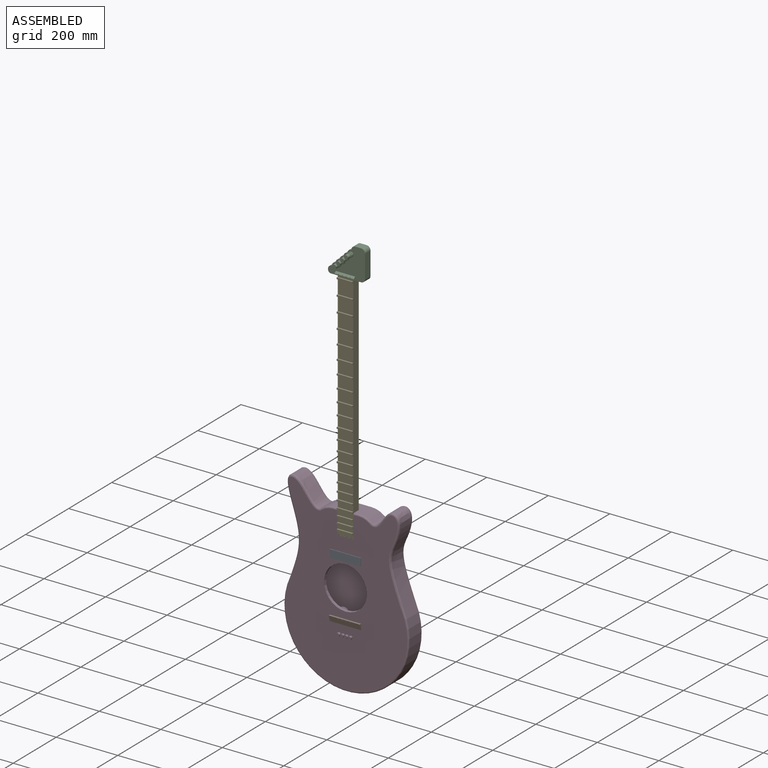
[diagram: assembled view]
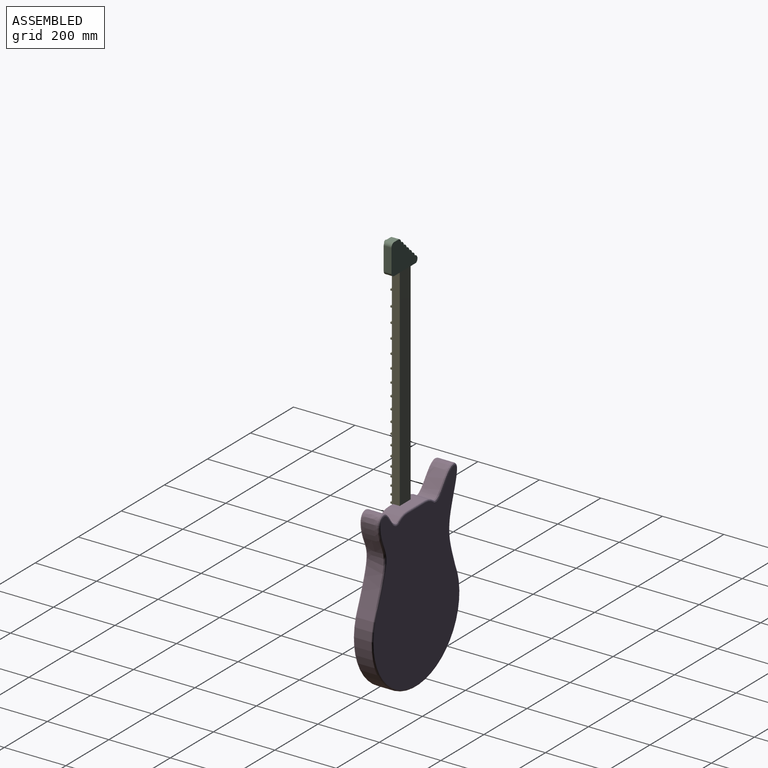
[diagram: assembled view, second angle]
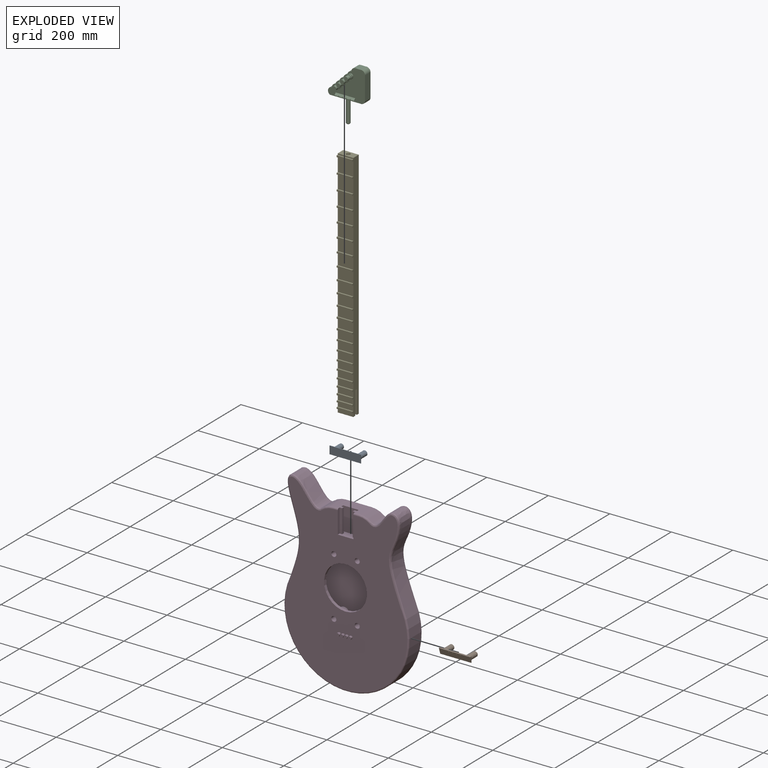
[diagram: exploded view]
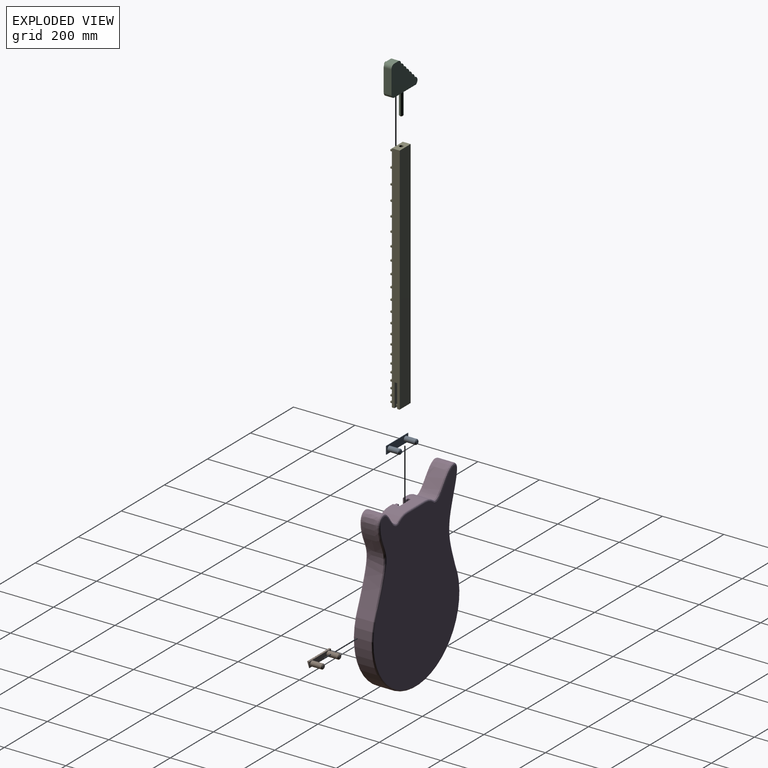
[diagram: exploded view, second angle]
ASSEMBLY  parts=5 mates=4
PART A: 12 faces, bbox 101.6x39.7x25.4 mm
  f0: plane 25.4x1.59mm, normal (-1,0,0), area 40.3mm2, adj f2,f3,f4,f9
  f1: plane 25.4x1.59mm, normal (1,0,0), area 40.3mm2, adj f2,f3,f4,f9
  f2: plane 101.6x1.59mm, normal (0,0,-1), area 161.3mm2, adj f0,f1,f4,f9
  f3: plane 101.6x1.59mm, normal (0,0,1), area 161.3mm2, adj f0,f1,f4,f9
  f4: plane 101.6x25.4mm, normal (0,1,0), area 2152.5mm2, adj f0,f1,f2,f3,f5,f7
  f5: cylinder r=8.26mm len=35.56mm, axis (0,-1,0), area 1844.4mm2, adj f4,f11
  f6: plane 11.43x11.43mm, normal (0,1,0), area 102.6mm2, adj f11
  f7: cylinder r=8.26mm len=35.56mm, axis (0,-1,0), area 1844.4mm2, adj f4,f10
  f8: plane 11.43x11.43mm, normal (0,1,0), area 102.6mm2, adj f10
  f9: plane 101.6x25.4mm, normal (0,-1,0), area 2580.6mm2, adj f0,f1,f2,f3
  f10: cone r=5.71mm half-angle=45deg, axis (0,-1,0), area 157.7mm2, adj f7,f8
  f11: cone r=5.71mm half-angle=45deg, axis (0,-1,0), area 157.7mm2, adj f5,f6
PART B: 15 faces, bbox 101.6x44.5x19.1 mm
  f0: plane 19.05x6.35mm, normal (-1,0,0), area 60.5mm2, adj f6,f13,f14
  f1: cylinder r=1.59mm len=4.78mm, axis (0,0,1), area 15.1mm2, adj f13,f14
  f2: cylinder r=1.59mm len=4.78mm, axis (0,0,1), area 15.1mm2, adj f13,f14
  f3: cylinder r=1.59mm len=4.78mm, axis (0,0,1), area 15.1mm2, adj f13,f14
  f4: cylinder r=1.59mm len=4.78mm, axis (0,0,1), area 15.1mm2, adj f13,f14
  f5: plane 19.05x6.35mm, normal (1,0,0), area 60.5mm2, adj f6,f13,f14
  f6: plane 101.6x19.05mm, normal (0,1,0), area 1507.3mm2, adj f0,f5,f7,f9,f13,f14
  f7: cylinder r=8.26mm len=35.56mm, axis (0,-1,0), area 1844.4mm2, adj f6,f12
  f8: plane 11.43x11.43mm, normal (0,1,0), area 102.6mm2, adj f12
  f9: cylinder r=8.26mm len=35.56mm, axis (0,-1,0), area 1844.4mm2, adj f6,f11
  f10: plane 11.43x11.43mm, normal (0,1,0), area 102.6mm2, adj f11
  f11: cone r=5.71mm half-angle=45deg, axis (0,-1,0), area 157.7mm2, adj f9,f10
  f12: cone r=5.71mm half-angle=45deg, axis (0,-1,0), area 157.7mm2, adj f7,f8
  f13: plane 101.6x6.35mm, normal (0,0,1), area 629.3mm2, adj f0,f1,f2,f3,f4,f5,f6,f14
  f14: plane 101.6x19.05mm, normal (0,-0.95,-0.32), area 1990.1mm2, adj f0,f1,f2,f3,f4,f5,f6,f13
PART C: 65 faces, bbox 120.7x50.8x176.1 mm
  f0: cylinder r=7.94mm len=15.88mm, axis (0,1,0), area 158.3mm2, adj f1,f9
  f1: plane 15.88x15.88mm, normal (0,-1,0), area 71.3mm2, adj f0,f7
  f2: plane 12.7x12.7mm, normal (0,-1,0), area 126.7mm2, adj f3
  f3: cylinder r=6.35mm len=12.7mm, axis (0,-1,0), area 506.7mm2, adj f2,f4
  f4: plane 15.88x15.88mm, normal (0,-1,0), area 71.3mm2, adj f3,f5
  f5: cylinder r=7.94mm len=15.88mm, axis (0,-1,0), area 158.3mm2, adj f4,f6
  f6: plane 15.88x15.88mm, normal (0,1,0), area 71.3mm2, adj f5,f7
  f7: cylinder r=6.35mm len=12.7mm, axis (0,1,0), area 126.7mm2, adj f1,f6
  f8: cylinder r=6.35mm len=12.7mm, axis (0,1,0), area 126.7mm2, adj f9,f33
  f9: plane 15.88x15.88mm, normal (0,1,0), area 71.3mm2, adj f0,f8
  f10: plane 7.62x7.62mm, normal (0,0,-1), area 45.6mm2, adj f64
  f11: cylinder r=6.35mm len=73.66mm, axis (0,0,1), area 2938.9mm2, adj f27,f64
  f12: plane 120.65x99.9mm, normal (0,1,0), area 8333.8mm2, adj f17,f18,f19,f20,f21,f22,f23,f24
  f13: cylinder r=1.59mm len=3.18mm, axis (0,0,-1), area 4.2mm2, adj f30,f32
  f14: cylinder r=1.59mm len=3.18mm, axis (0,0,-1), area 4.2mm2, adj f30,f32
  f15: cylinder r=1.59mm len=3.18mm, axis (0,0,-1), area 4.2mm2, adj f30,f32
  f16: cylinder r=1.59mm len=3.18mm, axis (0,0,-1), area 4.2mm2, adj f30,f32
  f17: cylinder r=12.7mm len=25.4mm, axis (0,1,0), area 506.7mm2, adj f12,f18,f28,f33
  f18: cylinder r=12.7mm len=25.4mm, axis (0,1,0), area 506.7mm2, adj f12,f17,f19,f33
  f19: cylinder r=12.7mm len=25.4mm, axis (0,1,0), area 506.7mm2, adj f12,f18,f20,f33
  f20: cylinder r=12.7mm len=25.4mm, axis (0,1,0), area 506.7mm2, adj f12,f19,f21,f33
  f21: cylinder r=12.7mm len=25.4mm, axis (0,1,0), area 506.7mm2, adj f12,f20,f22,f33
  f22: cylinder r=12.7mm len=25.4mm, axis (0,1,0), area 506.7mm2, adj f12,f21,f23,f33
  f23: plane 25.4x19.05mm, normal (0,0,1), area 483.9mm2, adj f12,f22,f24,f33
  f24: cylinder r=12.7mm len=25.4mm, axis (0,1,0), area 506.7mm2, adj f12,f23,f25,f33
  f25: plane 74.5x25.4mm, normal (1,0,0), area 1892.3mm2, adj f12,f24,f26,f33
  f26: cylinder r=12.7mm len=25.4mm, axis (0,1,0), area 506.7mm2, adj f12,f25,f27,f33
  f27: plane 101.6x25.4mm, normal (0,0,-1), area 2454mm2, adj f11,f12,f26,f28,f33
  f28: cylinder r=12.7mm len=25.4mm, axis (0,1,0), area 844.5mm2, adj f12,f17,f27,f33
  f29: plane 6.35x5.33mm, normal (1,0,0), area 16.9mm2, adj f30,f32,f33
  f30: plane 63.5x6.35mm, normal (0,-0.64,0.77), area 505.7mm2, adj f13,f14,f15,f16,f29,f31,f32,f33
  f31: plane 6.35x5.33mm, normal (-1,0,0), area 16.9mm2, adj f30,f32,f33
  f32: plane 63.5x6.35mm, normal (0,0,-1), area 387.4mm2, adj f13,f14,f15,f16,f29,f30,f31,f33
  f33: plane 120.65x99.9mm, normal (0,-1,0), area 7488.8mm2, adj f8,f17,f18,f19,f20,f21,f22,f23
  f34: cylinder r=6.35mm len=12.7mm, axis (0,1,0), area 126.7mm2, adj f33,f35
  f35: plane 15.88x15.88mm, normal (0,1,0), area 71.3mm2, adj f34,f43
  f36: plane 12.7x12.7mm, normal (0,-1,0), area 126.7mm2, adj f37
  f37: cylinder r=6.35mm len=12.7mm, axis (0,-1,0), area 506.7mm2, adj f36,f38
  f38: plane 15.88x15.88mm, normal (0,-1,0), area 71.3mm2, adj f37,f39
  f39: cylinder r=7.94mm len=15.88mm, axis (0,-1,0), area 158.3mm2, adj f38,f40
  f40: plane 15.88x15.88mm, normal (0,1,0), area 71.3mm2, adj f39,f41
  f41: cylinder r=6.35mm len=12.7mm, axis (0,1,0), area 126.7mm2, adj f40,f42
  f42: plane 15.88x15.88mm, normal (0,-1,0), area 71.3mm2, adj f41,f43
  f43: cylinder r=7.94mm len=15.88mm, axis (0,1,0), area 158.3mm2, adj f35,f42
  f44: cylinder r=6.35mm len=12.7mm, axis (0,1,0), area 126.7mm2, adj f33,f45
  f45: plane 15.88x15.88mm, normal (0,1,0), area 71.3mm2, adj f44,f53
  f46: plane 12.7x12.7mm, normal (0,-1,0), area 126.7mm2, adj f47
  f47: cylinder r=6.35mm len=12.7mm, axis (0,-1,0), area 506.7mm2, adj f46,f48
  f48: plane 15.88x15.88mm, normal (0,-1,0), area 71.3mm2, adj f47,f49
  f49: cylinder r=7.94mm len=15.88mm, axis (0,-1,0), area 158.3mm2, adj f48,f50
  f50: plane 15.88x15.88mm, normal (0,1,0), area 71.3mm2, adj f49,f51
  f51: cylinder r=6.35mm len=12.7mm, axis (0,1,0), area 126.7mm2, adj f50,f52
  f52: plane 15.88x15.88mm, normal (0,-1,0), area 71.3mm2, adj f51,f53
  f53: cylinder r=7.94mm len=15.88mm, axis (0,1,0), area 158.3mm2, adj f45,f52
  f54: cylinder r=6.35mm len=12.7mm, axis (0,1,0), area 126.7mm2, adj f33,f55
  f55: plane 15.88x15.88mm, normal (0,1,0), area 71.3mm2, adj f54,f63
  f56: plane 12.7x12.7mm, normal (0,-1,0), area 126.7mm2, adj f57
  f57: cylinder r=6.35mm len=12.7mm, axis (0,-1,0), area 506.7mm2, adj f56,f58
  f58: plane 15.88x15.88mm, normal (0,-1,0), area 71.3mm2, adj f57,f59
  f59: cylinder r=7.94mm len=15.88mm, axis (0,-1,0), area 158.3mm2, adj f58,f60
  f60: plane 15.88x15.88mm, normal (0,1,0), area 71.3mm2, adj f59,f61
  f61: cylinder r=6.35mm len=12.7mm, axis (0,1,0), area 126.7mm2, adj f60,f62
  f62: plane 15.88x15.88mm, normal (0,-1,0), area 71.3mm2, adj f61,f63
  f63: cylinder r=7.94mm len=15.88mm, axis (0,1,0), area 158.3mm2, adj f55,f62
  f64: cone r=3.81mm half-angle=45deg, axis (0,0,1), area 114.7mm2, adj f10,f11
PART D: 90 faces, bbox 439.9x73x607 mm
  f0: plane 76.2x8.26mm, normal (-1,0,0), area 629mm2, adj f2,f15,f83,f87
  f1: plane 76.2x8.26mm, normal (1,0,0), area 629mm2, adj f2,f15,f83,f84
  f2: plane 50.8x25.4mm, normal (0,0,1), area 1154mm2, adj f0,f1,f7,f36,f37,f83,f84,f85
  f3: cylinder r=5.08mm len=10.16mm, axis (0,-1,0), area 202.7mm2, adj f75,f82
  f4: cylinder r=5.08mm len=10.16mm, axis (0,-1,0), area 202.7mm2, adj f76,f81
  f5: cylinder r=5.08mm len=10.16mm, axis (0,-1,0), area 202.7mm2, adj f77,f80
  f6: cylinder r=5.08mm len=10.16mm, axis (0,-1,0), area 202.7mm2, adj f78,f79
  f7: plane 580.15x396.24mm, normal (0,-1,0), area 152020.6mm2, adj f2,f8,f9,f10,f11,f12,f13,f22
  f8: cylinder r=5.08mm len=17.68mm, axis (1,0,0), area 141.1mm2, adj f7,f15,f37,f41
  f9: cylinder r=3.81mm len=7.62mm, axis (0,1,0), area 76mm2, adj f7,f78
  f10: cylinder r=3.81mm len=7.62mm, axis (0,1,0), area 76mm2, adj f7,f77
  f11: cylinder r=3.81mm len=7.62mm, axis (0,1,0), area 76mm2, adj f7,f76
  f12: cylinder r=3.81mm len=7.62mm, axis (0,1,0), area 76mm2, adj f7,f75
  f13: cylinder r=69.85mm len=139.7mm, axis (0,-1,0), area 4180.3mm2, adj f7,f52
  f14: plane 580.15x396.24mm, normal (0,1,0), area 171998.4mm2, adj f29,f30,f31,f32,f33,f34,f35,f40
  f15: plane 83.39x53.34mm, normal (0,0,1), area 3552.2mm2, adj f0,f1,f8,f23,f29,f36,f37,f39
  f16: extruded ~272.62x53.34mm, area 15979.5mm2, adj f17,f21,f27,f33
  f17: extruded ~66.19x53.34mm, area 4682.7mm2, adj f16,f25,f31,f42
  f18: extruded ~299.83x110.75mm, area 23713.6mm2, adj f20,f22,f30,f39
  f19: cylinder r=203.2mm len=406.4mm, axis (0,1,0), area 43569.6mm2, adj f20,f21,f26,f34
  f20: cylinder r=5.08mm len=53.34mm, axis (0,1,0), area 35.6mm2, adj f18,f19,f24,f32
  f21: cylinder r=5.08mm len=53.34mm, axis (0,1,0), area 20.3mm2, adj f16,f19,f28,f35
  f22: bspline ~308.62x114.97mm, area 3539.3mm2, adj f7,f18,f24,f38
  f23: cylinder r=5.08mm len=14.91mm, axis (1,0,0), area 119mm2, adj f7,f15,f36,f38
  f24: torus R=10.16mm, axis (0,-1,0), area 7.3mm2, adj f7,f20,f22,f26
  f25: bspline ~89.64x56.98mm, area 712.8mm2, adj f7,f17,f27,f41
  f26: torus R=198.12mm, axis (0,-1,0), area 6458.8mm2, adj f7,f19,f24,f28
  f27: bspline ~363.15x92.98mm, area 2369.5mm2, adj f7,f16,f25,f28
  f28: torus R=10.16mm, axis (0,-1,0), area 4.1mm2, adj f7,f21,f26,f27
  f29: cylinder r=5.08mm len=83.39mm, axis (-1,0,0), area 665.4mm2, adj f14,f15,f40,f43
  f30: bspline ~308.62x114.98mm, area 3539.3mm2, adj f14,f18,f32,f40
  f31: bspline ~89.64x56.95mm, area 712.8mm2, adj f14,f17,f33,f43
  f32: torus R=10.16mm, axis (0,-1,0), area 7.3mm2, adj f14,f20,f30,f34
  f33: bspline ~363.16x92.98mm, area 2369.6mm2, adj f14,f16,f31,f35
  f34: torus R=198.12mm, axis (0,-1,0), area 6458.8mm2, adj f14,f19,f32,f35
  f35: torus R=10.16mm, axis (0,-1,0), area 4.1mm2, adj f14,f21,f33,f34
  f36: plane 76.2x8.89mm, normal (1,0,0), area 671.9mm2, adj f2,f7,f15,f23,f85
  f37: plane 76.2x8.89mm, normal (-1,0,0), area 671.9mm2, adj f2,f7,f8,f15,f89
  f38: torus R=58.42mm, axis (0,-1,0), area 326mm2, adj f7,f22,f23,f39
  f39: cylinder r=63.5mm len=53.34mm, axis (0,1,0), area 2244.7mm2, adj f15,f18,f38,f40
  f40: torus R=58.42mm, axis (0,-1,0), area 326mm2, adj f14,f29,f30,f39
  f41: torus R=58.42mm, axis (0,-1,0), area 318.2mm2, adj f7,f8,f25,f42
  f42: cylinder r=63.5mm len=53.34mm, axis (0,1,0), area 2190.4mm2, adj f15,f17,f41,f43
  f43: torus R=58.42mm, axis (0,-1,0), area 318.2mm2, adj f14,f29,f31,f42
  f44: cylinder r=8.26mm len=38.1mm, axis (0,-1,0), area 1976.2mm2, adj f7,f45
  f45: plane 16.51x16.51mm, normal (0,-1,0), area 214.1mm2, adj f44
  f46: cylinder r=8.26mm len=38.1mm, axis (0,-1,0), area 1976.2mm2, adj f7,f47
  f47: plane 16.51x16.51mm, normal (0,-1,0), area 214.1mm2, adj f46
  f48: cylinder r=8.26mm len=38.1mm, axis (0,-1,0), area 1976.2mm2, adj f7,f49
  f49: plane 16.51x16.51mm, normal (0,-1,0), area 214.1mm2, adj f48
  f50: cylinder r=8.26mm len=38.1mm, axis (0,-1,0), area 1976.2mm2, adj f7,f51
  f51: plane 16.51x16.51mm, normal (0,-1,0), area 214.1mm2, adj f50
  f52: plane 571.25x387.35mm, normal (0,1,0), area 139505.7mm2, adj f13,f54,f55,f56,f57,f58,f59,f60
  f53: plane 571.25x387.35mm, normal (0,-1,0), area 164128.7mm2, adj f54,f55,f56,f57,f58,f59,f60,f65
  f54: plane 83.39x44.45mm, normal (0,0,-1), area 1489.1mm2, adj f52,f53,f61,f62,f63,f65,f66
  f55: extruded ~266.59x44.45mm, area 12731mm2, adj f52,f53,f56,f60
  f56: extruded ~73.71x48.75mm, area 4256mm2, adj f52,f53,f55,f66
  f57: extruded ~293.32x107.1mm, area 19477.6mm2, adj f52,f53,f59,f65
  f58: cylinder r=193.68mm len=387.35mm, axis (0,1,0), area 34606.1mm2, adj f52,f53,f59,f60
  f59: cylinder r=14.61mm len=44.45mm, axis (0,1,0), area 85.3mm2, adj f52,f53,f57,f58
  f60: cylinder r=14.61mm len=44.45mm, axis (0,1,0), area 48.7mm2, adj f52,f53,f55,f58
  f61: plane 76.2x69.85mm, normal (0,1,0), area 5322.6mm2, adj f54,f62,f63,f64
  f62: plane 76.2x31.75mm, normal (-1,0,0), area 2419.3mm2, adj f52,f54,f61,f64
  f63: plane 76.2x31.75mm, normal (1,0,0), area 2419.3mm2, adj f52,f54,f61,f64
  f64: plane 69.85x31.75mm, normal (0,0,-1), area 2217.7mm2, adj f52,f61,f62,f63
  f65: cylinder r=53.98mm len=44.45mm, axis (0,1,0), area 1590mm2, adj f52,f53,f54,f57
  f66: cylinder r=53.98mm len=44.45mm, axis (0,1,0), area 1551.5mm2, adj f52,f53,f54,f56
  f67: cylinder r=17.78mm len=38.1mm, axis (0,-1,0), area 4256.3mm2, adj f52,f68
  f68: plane 35.56x35.56mm, normal (0,1,0), area 993.1mm2, adj f67
  f69: cylinder r=17.78mm len=38.1mm, axis (0,-1,0), area 4256.3mm2, adj f52,f70
  f70: plane 35.56x35.56mm, normal (0,1,0), area 993.1mm2, adj f69
  f71: cylinder r=17.78mm len=38.1mm, axis (0,-1,0), area 4256.3mm2, adj f52,f72
  f72: plane 35.56x35.56mm, normal (0,1,0), area 993.1mm2, adj f71
  f73: cylinder r=17.78mm len=38.1mm, axis (0,-1,0), area 4256.3mm2, adj f52,f74
  f74: plane 35.56x35.56mm, normal (0,1,0), area 993.1mm2, adj f73
  f75: plane 10.16x10.16mm, normal (0,1,0), area 35.5mm2, adj f3,f12
  f76: plane 10.16x10.16mm, normal (0,1,0), area 35.5mm2, adj f4,f11
  f77: plane 10.16x10.16mm, normal (0,1,0), area 35.5mm2, adj f5,f10
  f78: plane 10.16x10.16mm, normal (0,1,0), area 35.5mm2, adj f6,f9
  f79: plane 10.16x10.16mm, normal (0,-1,0), area 81.1mm2, adj f6
  f80: plane 10.16x10.16mm, normal (0,-1,0), area 81.1mm2, adj f5
  f81: plane 10.16x10.16mm, normal (0,-1,0), area 81.1mm2, adj f4
  f82: plane 10.16x10.16mm, normal (0,-1,0), area 81.1mm2, adj f3
  f83: plane 76.2x50.8mm, normal (0,-1,0), area 3871mm2, adj f0,f1,f2,f15
  f84: plane 76.2x8.26mm, normal (0,1,0), area 629mm2, adj f1,f2,f15,f86
  f85: plane 76.2x8.26mm, normal (0,-1,0), area 629mm2, adj f2,f15,f36,f86
  f86: plane 76.2x8.26mm, normal (1,0,0), area 629mm2, adj f2,f15,f84,f85
  f87: plane 76.2x8.26mm, normal (0,1,0), area 629mm2, adj f0,f2,f15,f88
  f88: plane 76.2x8.26mm, normal (-1,0,0), area 629mm2, adj f2,f15,f87,f89
  f89: plane 76.2x8.26mm, normal (0,-1,0), area 629mm2, adj f2,f15,f37,f88
PART E: 124 faces, bbox 50.8x30.5x762 mm
  f0: plane 761.37x30.48mm, normal (1,0,0), area 19282.6mm2, adj f2,f3,f4,f5,f6,f7,f8,f9
  f1: plane 49.53x24.13mm, normal (0,0,-1), area 1037.9mm2, adj f112,f113,f114,f115,f116,f117,f118,f119
  f2: plane 50.8x12.07mm, normal (0,-1,0), area 612.9mm2, adj f0,f26,f92,f113
  f3: plane 50.8x14.29mm, normal (0,-1,0), area 725.8mm2, adj f0,f26,f89,f91
  f4: plane 50.8x15.88mm, normal (0,-1,0), area 806.4mm2, adj f0,f26,f86,f88
  f5: plane 50.8x17.46mm, normal (0,-1,0), area 887.1mm2, adj f0,f26,f83,f85
  f6: plane 50.8x19.05mm, normal (0,-1,0), area 967.7mm2, adj f0,f26,f80,f82
  f7: plane 50.8x20.64mm, normal (0,-1,0), area 1048.4mm2, adj f0,f26,f77,f79
  f8: plane 50.8x22.23mm, normal (0,-1,0), area 1129mm2, adj f0,f26,f74,f76
  f9: plane 50.8x23.81mm, normal (0,-1,0), area 1209.7mm2, adj f0,f26,f71,f73
  f10: plane 50.8x25.4mm, normal (0,-1,0), area 1290.3mm2, adj f0,f26,f68,f70
  f11: plane 50.8x26.99mm, normal (0,-1,0), area 1371mm2, adj f0,f26,f65,f67
  f12: plane 50.8x28.58mm, normal (0,-1,0), area 1451.6mm2, adj f0,f26,f62,f64
  f13: plane 50.8x30.16mm, normal (0,-1,0), area 1532.3mm2, adj f0,f26,f59,f61
  f14: plane 50.8x31.75mm, normal (0,-1,0), area 1612.9mm2, adj f0,f26,f56,f58
  f15: plane 50.8x33.34mm, normal (0,-1,0), area 1693.5mm2, adj f0,f26,f53,f55
  f16: plane 50.8x34.93mm, normal (0,-1,0), area 1774.2mm2, adj f0,f26,f50,f52
  f17: plane 50.8x36.51mm, normal (0,-1,0), area 1854.8mm2, adj f0,f26,f47,f49
  f18: plane 50.8x38.1mm, normal (0,-1,0), area 1935.5mm2, adj f0,f26,f44,f46
  f19: plane 50.8x39.69mm, normal (0,-1,0), area 2016.1mm2, adj f0,f26,f41,f43
  f20: plane 50.8x41.28mm, normal (0,-1,0), area 2096.8mm2, adj f0,f26,f38,f40
  f21: plane 50.8x42.86mm, normal (0,-1,0), area 2177.4mm2, adj f0,f26,f35,f37
  f22: plane 50.8x44.45mm, normal (0,-1,0), area 2258.1mm2, adj f0,f26,f32,f34
  f23: plane 50.8x46.04mm, normal (0,-1,0), area 2338.7mm2, adj f0,f26,f29,f31
  f24: plane 50.8x4.13mm, normal (0,-1,0), area 209.7mm2, adj f0,f26,f27,f28
  f25: plane 761.37x50.8mm, normal (0,1,0), area 38677.3mm2, adj f0,f26,f27,f122
  f26: plane 761.37x30.48mm, normal (-1,0,0), area 19282.6mm2, adj f2,f3,f4,f5,f6,f7,f8,f9
  f27: plane 50.8x25.4mm, normal (0,0,1), area 1163.6mm2, adj f0,f24,f25,f26,f94
  f28: plane 50.8x5.08mm, normal (0,0,1), area 258.1mm2, adj f0,f24,f26,f30
  f29: plane 50.8x5.08mm, normal (0,0,-1), area 258.1mm2, adj f0,f23,f26,f30
  f30: plane 50.8x5.08mm, normal (0,-1,0), area 258.1mm2, adj f0,f26,f28,f29
  f31: plane 50.8x5.08mm, normal (0,0,1), area 258.1mm2, adj f0,f23,f26,f33
  f32: plane 50.8x5.08mm, normal (0,0,-1), area 258.1mm2, adj f0,f22,f26,f33
  f33: plane 50.8x5.08mm, normal (0,-1,0), area 258.1mm2, adj f0,f26,f31,f32
  f34: plane 50.8x5.08mm, normal (0,0,1), area 258.1mm2, adj f0,f22,f26,f36
  f35: plane 50.8x5.08mm, normal (0,0,-1), area 258.1mm2, adj f0,f21,f26,f36
  f36: plane 50.8x5.08mm, normal (0,-1,0), area 258.1mm2, adj f0,f26,f34,f35
  f37: plane 50.8x5.08mm, normal (0,0,1), area 258.1mm2, adj f0,f21,f26,f39
  f38: plane 50.8x5.08mm, normal (0,0,-1), area 258.1mm2, adj f0,f20,f26,f39
  f39: plane 50.8x5.08mm, normal (0,-1,0), area 258.1mm2, adj f0,f26,f37,f38
  f40: plane 50.8x5.08mm, normal (0,0,1), area 258.1mm2, adj f0,f20,f26,f42
  f41: plane 50.8x5.08mm, normal (0,0,-1), area 258.1mm2, adj f0,f19,f26,f42
  f42: plane 50.8x5.08mm, normal (0,-1,0), area 258.1mm2, adj f0,f26,f40,f41
  f43: plane 50.8x5.08mm, normal (0,0,1), area 258.1mm2, adj f0,f19,f26,f45
  f44: plane 50.8x5.08mm, normal (0,0,-1), area 258.1mm2, adj f0,f18,f26,f45
  f45: plane 50.8x5.08mm, normal (0,-1,0), area 258.1mm2, adj f0,f26,f43,f44
  f46: plane 50.8x5.08mm, normal (0,0,1), area 258.1mm2, adj f0,f18,f26,f48
  f47: plane 50.8x5.08mm, normal (0,0,-1), area 258.1mm2, adj f0,f17,f26,f48
  f48: plane 50.8x5.08mm, normal (0,-1,0), area 258.1mm2, adj f0,f26,f46,f47
  f49: plane 50.8x5.08mm, normal (0,0,1), area 258.1mm2, adj f0,f17,f26,f51
  f50: plane 50.8x5.08mm, normal (0,0,-1), area 258.1mm2, adj f0,f16,f26,f51
  f51: plane 50.8x5.08mm, normal (0,-1,0), area 258.1mm2, adj f0,f26,f49,f50
  f52: plane 50.8x5.08mm, normal (0,0,1), area 258.1mm2, adj f0,f16,f26,f54
  f53: plane 50.8x5.08mm, normal (0,0,-1), area 258.1mm2, adj f0,f15,f26,f54
  f54: plane 50.8x5.08mm, normal (0,-1,0), area 258.1mm2, adj f0,f26,f52,f53
  f55: plane 50.8x5.08mm, normal (0,0,1), area 258.1mm2, adj f0,f15,f26,f57
  f56: plane 50.8x5.08mm, normal (0,0,-1), area 258.1mm2, adj f0,f14,f26,f57
  f57: plane 50.8x5.08mm, normal (0,-1,0), area 258.1mm2, adj f0,f26,f55,f56
  f58: plane 50.8x5.08mm, normal (0,0,1), area 258.1mm2, adj f0,f14,f26,f60
  f59: plane 50.8x5.08mm, normal (0,0,-1), area 258.1mm2, adj f0,f13,f26,f60
  f60: plane 50.8x5.08mm, normal (0,-1,0), area 258.1mm2, adj f0,f26,f58,f59
  f61: plane 50.8x5.08mm, normal (0,0,1), area 258.1mm2, adj f0,f13,f26,f63
  f62: plane 50.8x5.08mm, normal (0,0,-1), area 258.1mm2, adj f0,f12,f26,f63
  f63: plane 50.8x5.08mm, normal (0,-1,0), area 258.1mm2, adj f0,f26,f61,f62
  f64: plane 50.8x5.08mm, normal (0,0,1), area 258.1mm2, adj f0,f12,f26,f66
  f65: plane 50.8x5.08mm, normal (0,0,-1), area 258.1mm2, adj f0,f11,f26,f66
  f66: plane 50.8x5.08mm, normal (0,-1,0), area 258.1mm2, adj f0,f26,f64,f65
  f67: plane 50.8x5.08mm, normal (0,0,1), area 258.1mm2, adj f0,f11,f26,f69
  f68: plane 50.8x5.08mm, normal (0,0,-1), area 258.1mm2, adj f0,f10,f26,f69
  f69: plane 50.8x5.08mm, normal (0,-1,0), area 258.1mm2, adj f0,f26,f67,f68
  f70: plane 50.8x5.08mm, normal (0,0,1), area 258.1mm2, adj f0,f10,f26,f72
  f71: plane 50.8x5.08mm, normal (0,0,-1), area 258.1mm2, adj f0,f9,f26,f72
  f72: plane 50.8x5.08mm, normal (0,-1,0), area 258.1mm2, adj f0,f26,f70,f71
  f73: plane 50.8x5.08mm, normal (0,0,1), area 258.1mm2, adj f0,f9,f26,f75
  f74: plane 50.8x5.08mm, normal (0,0,-1), area 258.1mm2, adj f0,f8,f26,f75
  f75: plane 50.8x5.08mm, normal (0,-1,0), area 258.1mm2, adj f0,f26,f73,f74
  f76: plane 50.8x5.08mm, normal (0,0,1), area 258.1mm2, adj f0,f8,f26,f78
  f77: plane 50.8x5.08mm, normal (0,0,-1), area 258.1mm2, adj f0,f7,f26,f78
  f78: plane 50.8x5.08mm, normal (0,-1,0), area 258.1mm2, adj f0,f26,f76,f77
  f79: plane 50.8x5.08mm, normal (0,0,1), area 258.1mm2, adj f0,f7,f26,f81
  f80: plane 50.8x5.08mm, normal (0,0,-1), area 258.1mm2, adj f0,f6,f26,f81
  f81: plane 50.8x5.08mm, normal (0,-1,0), area 258.1mm2, adj f0,f26,f79,f80
  f82: plane 50.8x5.08mm, normal (0,0,1), area 258.1mm2, adj f0,f6,f26,f84
  f83: plane 50.8x5.08mm, normal (0,0,-1), area 258.1mm2, adj f0,f5,f26,f84
  f84: plane 50.8x5.08mm, normal (0,-1,0), area 258.1mm2, adj f0,f26,f82,f83
  f85: plane 50.8x5.08mm, normal (0,0,1), area 258.1mm2, adj f0,f5,f26,f87
  f86: plane 50.8x5.08mm, normal (0,0,-1), area 258.1mm2, adj f0,f4,f26,f87
  f87: plane 50.8x5.08mm, normal (0,-1,0), area 258.1mm2, adj f0,f26,f85,f86
  f88: plane 50.8x5.08mm, normal (0,0,1), area 258.1mm2, adj f0,f4,f26,f90
  f89: plane 50.8x5.08mm, normal (0,0,-1), area 258.1mm2, adj f0,f3,f26,f90
  f90: plane 50.8x5.08mm, normal (0,-1,0), area 258.1mm2, adj f0,f26,f88,f89
  f91: plane 50.8x5.08mm, normal (0,0,1), area 258.1mm2, adj f0,f3,f26,f93
  f92: plane 50.8x5.08mm, normal (0,0,-1), area 258.1mm2, adj f0,f2,f26,f93
  f93: plane 50.8x5.08mm, normal (0,-1,0), area 258.1mm2, adj f0,f26,f91,f92
  f94: cylinder r=6.35mm len=76.2mm, axis (0,0,1), area 3040.2mm2, adj f27,f95
  f95: plane 12.7x12.7mm, normal (0,0,1), area 126.7mm2, adj f94
  f96: plane 8.26x7.62mm, normal (1,0,0), area 62.9mm2, adj f97,f108,f111,f119
  f97: plane 75.57x8.26mm, normal (0,1,0), area 623.8mm2, adj f0,f96,f98,f109,f117
  f98: plane 8.26x8.26mm, normal (0,0,-1), area 68.1mm2, adj f0,f97,f108,f109
  f99: plane 8.26x7.62mm, normal (-1,0,0), area 62.9mm2, adj f100,f108,f111,f116
  f100: plane 75.57x8.26mm, normal (0,1,0), area 623.8mm2, adj f26,f99,f101,f102,f114
  f101: plane 8.26x8.26mm, normal (0,0,-1), area 68.1mm2, adj f26,f100,f102,f108
  f102: plane 745.49x8.89mm, normal (1,0,0), area 6066.5mm2, adj f100,f101,f107,f108,f110,f111
  f103: cylinder r=14.61mm len=76.2mm, axis (0,0,1), area 688.3mm2, adj f104,f107,f108,f110
  f104: plane 29.21x8.89mm, normal (0,0,-1), area 255.6mm2, adj f103,f105,f108,f110
  f105: cylinder r=14.61mm len=76.2mm, axis (0,0,1), area 688.3mm2, adj f104,f106,f108,f110
  f106: plane 8.89x3.23mm, normal (0,0,-1), area 24.6mm2, adj f105,f108,f109,f110
  f107: plane 8.89x3.23mm, normal (0,0,-1), area 24.6mm2, adj f102,f103,f108,f110
  f108: plane 753.11x50.8mm, normal (0,-1,0), area 24690.2mm2, adj f0,f26,f96,f98,f99,f101,f102,f103
  f109: plane 745.49x8.89mm, normal (-1,0,0), area 6066.5mm2, adj f97,f98,f106,f108,f110,f111
  f110: plane 745.49x34.29mm, normal (0,1,0), area 23442.6mm2, adj f102,f103,f104,f105,f106,f107,f109,f111
  f111: plane 34.29x8.89mm, normal (0,0,1), area 304.8mm2, adj f96,f99,f102,f108,f109,f110
  f112: plane 8.89x0.64mm, normal (-0.71,0,-0.71), area 7.4mm2, adj f1,f26,f113,f114
  f113: plane 50.8x0.64mm, normal (0,-0.71,-0.71), area 45mm2, adj f1,f2,f112,f115
  f114: plane 8.89x0.64mm, normal (0,0.71,-0.71), area 7.4mm2, adj f1,f100,f112,f116
  f115: plane 8.89x0.64mm, normal (0.71,0,-0.71), area 7.4mm2, adj f0,f1,f113,f117
  f116: plane 9.53x0.64mm, normal (-0.71,0,-0.71), area 8mm2, adj f1,f99,f114,f118
  f117: plane 8.89x0.64mm, normal (0,0.71,-0.71), area 7.4mm2, adj f1,f97,f115,f119
  f118: plane 8.89x0.64mm, normal (0,-0.71,-0.71), area 7.4mm2, adj f1,f108,f116,f120
  f119: plane 9.53x0.64mm, normal (0.71,0,-0.71), area 8mm2, adj f1,f96,f117,f121
  f120: plane 8.26x0.64mm, normal (-0.71,0,-0.71), area 6.8mm2, adj f1,f26,f118,f122
  f121: plane 8.89x0.64mm, normal (0,-0.71,-0.71), area 7.4mm2, adj f1,f108,f119,f123
  f122: plane 50.8x0.64mm, normal (0,0.71,-0.71), area 45mm2, adj f1,f25,f120,f123
  f123: plane 8.26x0.64mm, normal (0.71,0,-0.71), area 6.8mm2, adj f0,f1,f121,f122
PLACE A t=(-159.58,42.3,270.71)mm
PLACE B t=(-159.58,42.3,80.21)mm
PLACE C t=(-159.58,67.71,1119.08)mm
PLACE D t=(-106.51,105.8,105.61)mm fixed
PLACE E t=(-108.78,55.01,280.88)mm
MATE fastened A.f5 <-> D.f46  axis (0,1,0) through (-70.68,80.4,296.11)mm
MATE fastened C.f11 <-> E.f94  axis (0,0,-1) through (-108.78,55.01,1042.88)mm
MATE fastened B.f7 <-> D.f48  axis (0,1,0) through (-70.68,80.4,105.61)mm
MATE fastened E.f1 <-> D.f2  axis (0,0,-1) through (-108.78,54.97,357.08)mm
